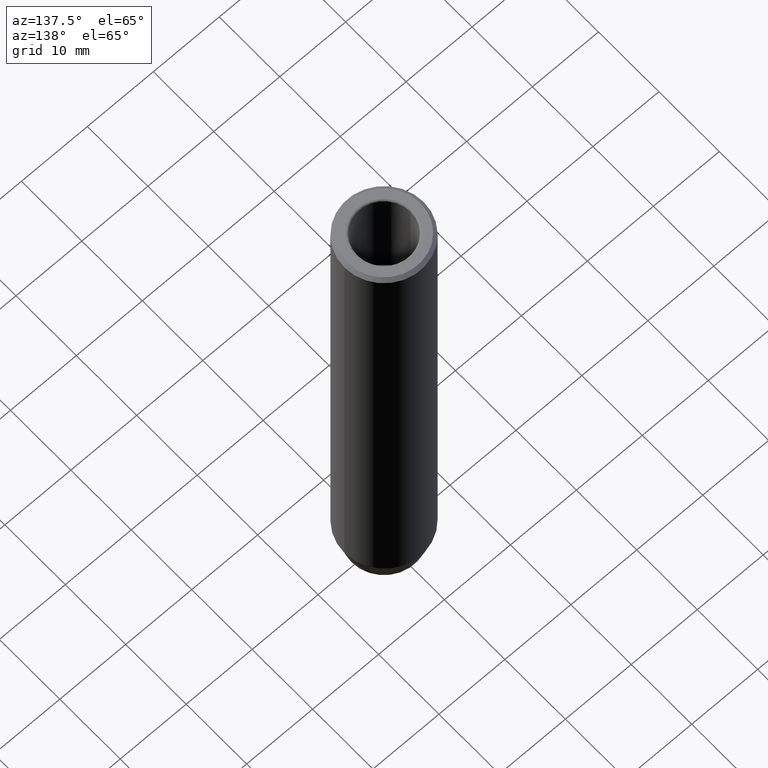
[diagram: clean part render]
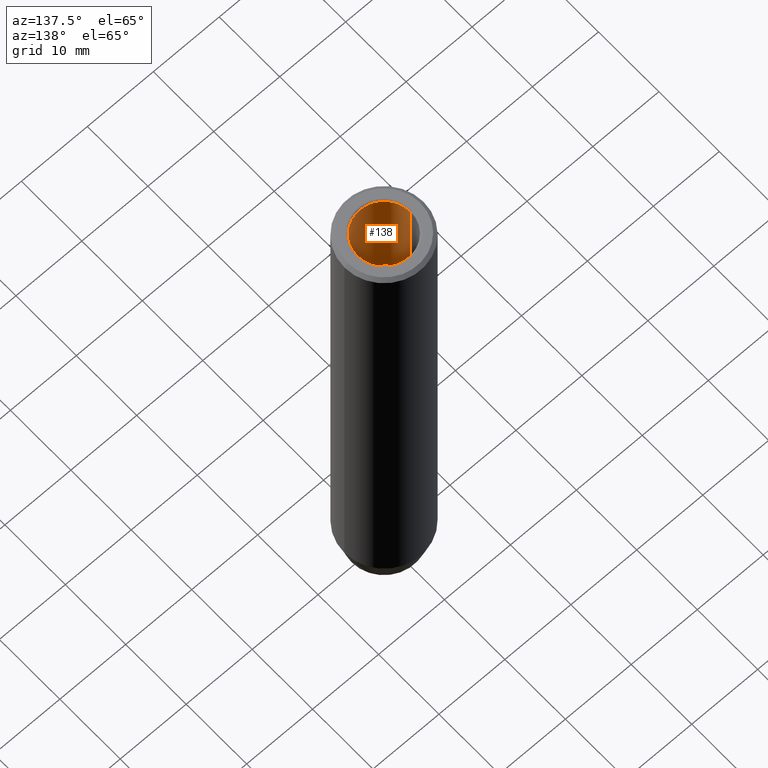
[diagram: same view with one face highlighted and labeled with its STEP entity id]
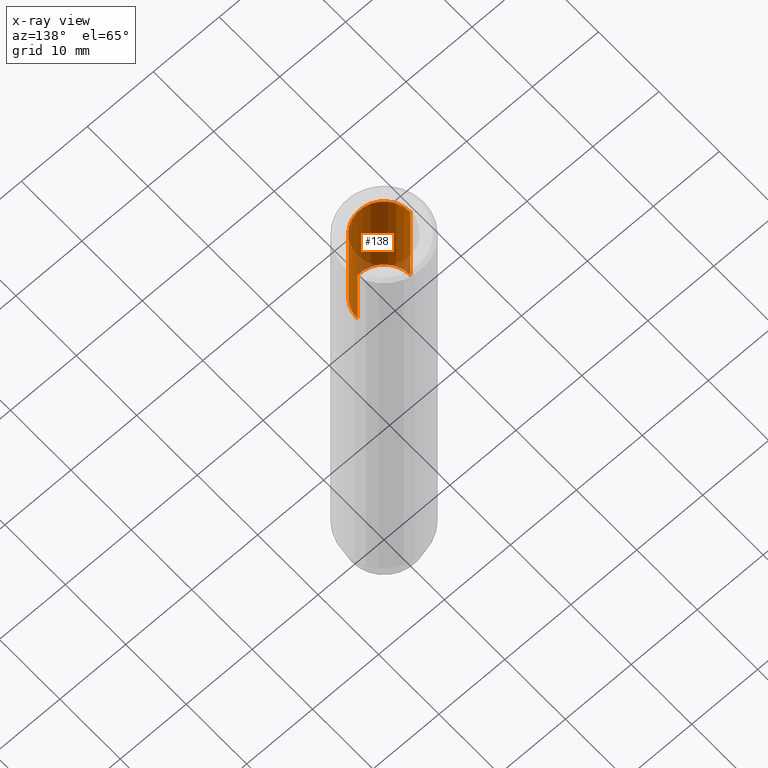
[diagram: x-ray of the same camera — body ghosted, the highlighted face saturated]
A machine part, auxiliary view. The second image highlights one B-rep face of the part: STEP entity #138.
The next image is the same camera in x-ray: the body ghosted, the highlighted face saturated — about 7% of this face is hidden behind the body in this view.
In plain terms, the highlighted cylindrical surface (edge-blend (fillet) strip) has radius 4 mm, axis along (-0, -0, 1).
Its self-contained STEP definition (entity closure, byte-faithful):
#16 = CIRCLE ( 'NONE', #324, 3.999999999999996447 ) ;
#24 = VERTEX_POINT ( 'NONE', #623 ) ;
#35 = ORIENTED_EDGE ( 'NONE', *, *, #332, .T. ) ;
#63 = CARTESIAN_POINT ( 'NONE',  ( 0.000000000000000000, 0.000000000000000000, -17.00000000000000000 ) ) ;
#70 = ORIENTED_EDGE ( 'NONE', *, *, #327, .F. ) ;
#90 = CARTESIAN_POINT ( 'NONE',  ( 0.000000000000000000, 0.000000000000000000, -0.2999999999999999889 ) ) ;
#113 = DIRECTION ( 'NONE',  ( 1.000000000000000000, 0.000000000000000000, 0.000000000000000000 ) ) ;
#115 = EDGE_CURVE ( 'NONE', #165, #163, #234, .T. ) ;
#117 = VECTOR ( 'NONE', #274, 1000.000000000000000 ) ;
#125 = DIRECTION ( 'NONE',  ( -0.000000000000000000, -0.000000000000000000, 1.000000000000000000 ) ) ;
#138 = ADVANCED_FACE ( 'NONE', ( #365 ), #308, .F. ) ;
#159 = VECTOR ( 'NONE', #125, 1000.000000000000000 ) ;
#163 = VERTEX_POINT ( 'NONE', #292 ) ;
#165 = VERTEX_POINT ( 'NONE', #549 ) ;
#169 = CARTESIAN_POINT ( 'NONE',  ( 3.999999999999996447, 0.000000000000000000, 0.000000000000000000 ) ) ;
#223 = CARTESIAN_POINT ( 'NONE',  ( 0.000000000000000000, 0.000000000000000000, 0.000000000000000000 ) ) ;
#234 = LINE ( 'NONE', #528, #117 ) ;
#265 = DIRECTION ( 'NONE',  ( 1.000000000000000000, 0.000000000000000000, 0.000000000000000000 ) ) ;
#271 = AXIS2_PLACEMENT_3D ( 'NONE', #63, #606, #113 ) ;
#274 = DIRECTION ( 'NONE',  ( -0.000000000000000000, -0.000000000000000000, 1.000000000000000000 ) ) ;
#292 = CARTESIAN_POINT ( 'NONE',  ( -3.999999999999996447, 4.898587196589408884E-16, -0.2999999999999999889 ) ) ;
#308 = CYLINDRICAL_SURFACE ( 'NONE', #484, 3.999999999999996447 ) ;
#321 = DIRECTION ( 'NONE',  ( -0.000000000000000000, -0.000000000000000000, 1.000000000000000000 ) ) ;
#324 = AXIS2_PLACEMENT_3D ( 'NONE', #90, #321, #265 ) ;
#327 = EDGE_CURVE ( 'NONE', #605, #24, #417, .T. ) ;
#331 = DIRECTION ( 'NONE',  ( 1.000000000000000000, 0.000000000000000000, 0.000000000000000000 ) ) ;
#332 = EDGE_CURVE ( 'NONE', #163, #24, #16, .T. ) ;
#337 = CIRCLE ( 'NONE', #271, 3.999999999999995559 ) ;
#365 = FACE_OUTER_BOUND ( 'NONE', #499, .T. ) ;
#406 = CARTESIAN_POINT ( 'NONE',  ( 3.999999999999995559, 0.000000000000000000, -17.00000000000000000 ) ) ;
#417 = LINE ( 'NONE', #169, #159 ) ;
#458 = ORIENTED_EDGE ( 'NONE', *, *, #115, .T. ) ;
#484 = AXIS2_PLACEMENT_3D ( 'NONE', #223, #615, #331 ) ;
#499 = EDGE_LOOP ( 'NONE', ( #525, #458, #35, #70 ) ) ;
#525 = ORIENTED_EDGE ( 'NONE', *, *, #588, .F. ) ;
#528 = CARTESIAN_POINT ( 'NONE',  ( -3.999999999999996447, 4.898587196589408884E-16, 0.000000000000000000 ) ) ;
#549 = CARTESIAN_POINT ( 'NONE',  ( -3.999999999999995559, 4.898587196589407898E-16, -17.00000000000000000 ) ) ;
#588 = EDGE_CURVE ( 'NONE', #165, #605, #337, .T. ) ;
#605 = VERTEX_POINT ( 'NONE', #406 ) ;
#606 = DIRECTION ( 'NONE',  ( -0.000000000000000000, -0.000000000000000000, 1.000000000000000000 ) ) ;
#615 = DIRECTION ( 'NONE',  ( -0.000000000000000000, -0.000000000000000000, 1.000000000000000000 ) ) ;
#623 = CARTESIAN_POINT ( 'NONE',  ( 3.999999999999996447, 0.000000000000000000, -0.2999999999999999889 ) ) ;